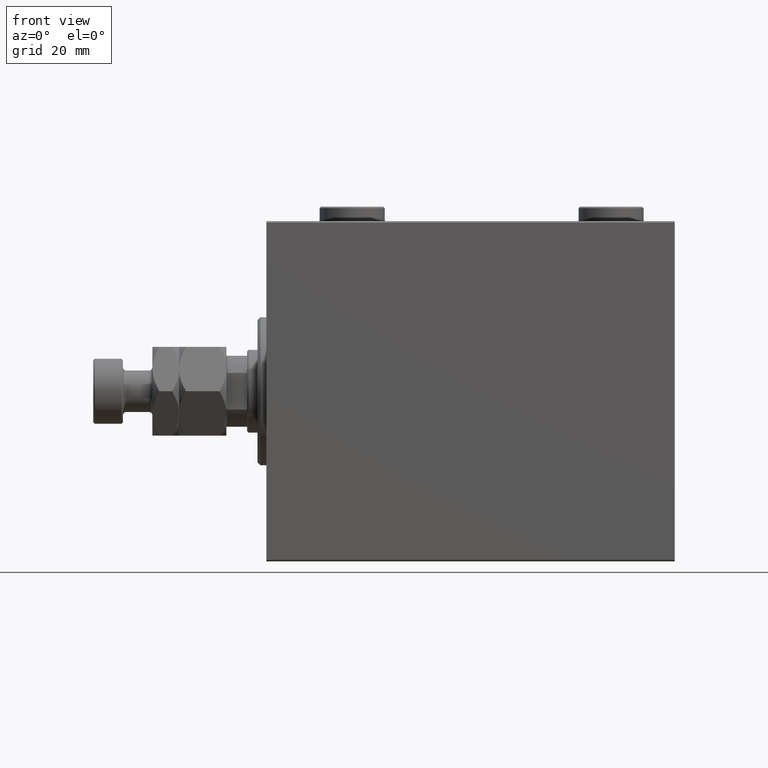
[diagram: clean part render]
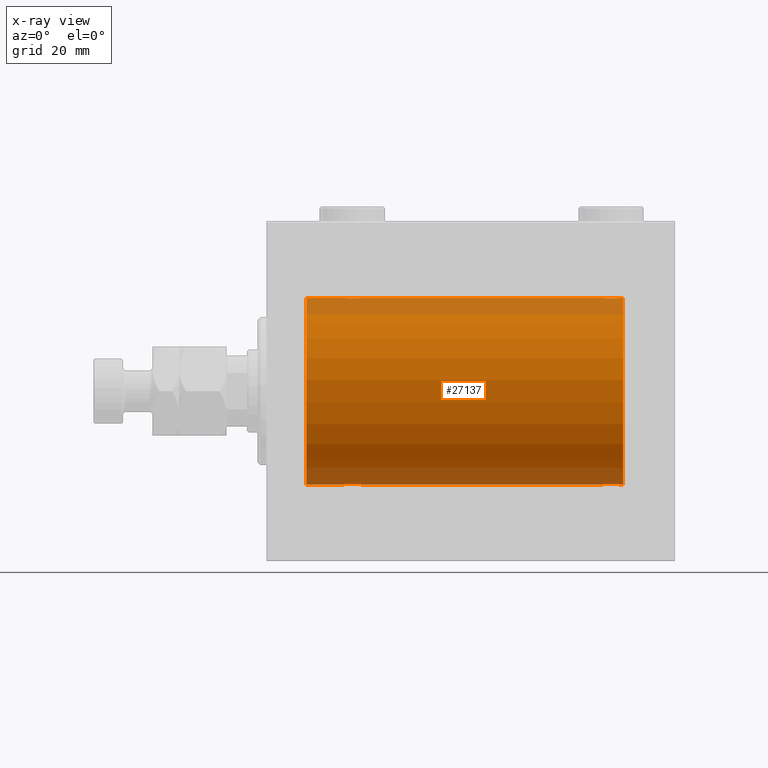
[diagram: x-ray — body ghosted, one internal face saturated and labeled with its STEP entity id]
A machine part, front view, then the same camera in x-ray: the body is ghosted and one INTERNAL B-rep face — a face not visible from any outside direction — is saturated and labeled: STEP entity #27137.
In plain terms, the highlighted cylindrical surface (partial cylindrical patch) has radius 31.5 mm, axis along (-1, -0, -0).
Its self-contained STEP definition (entity closure, byte-faithful):
#1577 = CARTESIAN_POINT ( 'NONE',  ( 118.0009815629615133, -2.604888532024798309, 31.39229907792057972 ) ) ;
#1813 = CARTESIAN_POINT ( 'NONE',  ( 117.2746909443437460, -2.904836261170115730, 31.36579955910872997 ) ) ;
#2293 = CARTESIAN_POINT ( 'NONE',  ( 118.8850144227693306, -1.830470878313876781, -31.44719957596828763 ) ) ;
#2340 = CARTESIAN_POINT ( 'NONE',  ( 26.00000000000000355, -2.117263226567934635E-23, 31.50000000000000000 ) ) ;
#2760 = CARTESIAN_POINT ( 'NONE',  ( 115.1713458531249330, -2.696917666262924840, -31.38442820068731365 ) ) ;
#2805 = DIRECTION ( 'NONE',  ( -1.000000000000000000, -0.000000000000000000, -0.000000000000000000 ) ) ;
#2938 = CARTESIAN_POINT ( 'NONE',  ( 26.39807859560848158, -1.506272792558332130, -31.46439306106697131 ) ) ;
#2983 = LINE ( 'NONE', #31972, #38475 ) ;
#2990 = CARTESIAN_POINT ( 'NONE',  ( 117.8323995809916767, -2.695056442718546830, -31.38458855656186230 ) ) ;
#3174 = CARTESIAN_POINT ( 'NONE',  ( 29.77881912642320827, -2.903733559410679455, -31.36590199989303684 ) ) ;
#3406 = CARTESIAN_POINT ( 'NONE',  ( 27.01856537126958813, -2.261012035264781783, -31.41905495618428645 ) ) ;
#3506 = CARTESIAN_POINT ( 'NONE',  ( 120.5000000000000000, 3.857637417314162689E-15, -31.50000000000000000 ) ) ;
#3878 = CARTESIAN_POINT ( 'NONE',  ( 27.49901843703856130, -2.604888532024793424, -31.39229907792058683 ) ) ;
#4253 = CARTESIAN_POINT ( 'NONE',  ( 13.49999999999999822, 0.000000000000000000, 31.50000000000000000 ) ) ;
#4921 = CARTESIAN_POINT ( 'NONE',  ( 119.1952964235901504, -1.331741824817663122, 31.47235367475394341 ) ) ;
#5039 = LINE ( 'NONE', #19553, #12395 ) ;
#5079 = VERTEX_POINT ( 'NONE', #7379 ) ;
#5145 = CARTESIAN_POINT ( 'NONE',  ( 113.5000000000000142, -2.116947682205846230E-23, 31.50000000000000000 ) ) ;
#5202 = ORIENTED_EDGE ( 'NONE', *, *, #22225, .T. ) ;
#5610 = CARTESIAN_POINT ( 'NONE',  ( 118.8824687226663315, -1.833765390051044442, 31.44700610425689291 ) ) ;
#5855 = CARTESIAN_POINT ( 'NONE',  ( 119.1041778127473094, -1.502389880412997147, -31.46458023642405877 ) ) ;
#5902 = CARTESIAN_POINT ( 'NONE',  ( 29.39114547339941552, -2.980809450819701834, 31.35867074198615967 ) ) ;
#5916 = CARTESIAN_POINT ( 'NONE',  ( 119.5000000000000284, 3.857637396143758955E-15, -31.50000000000000000 ) ) ;
#5991 = VERTEX_POINT ( 'NONE', #18391 ) ;
#6132 = CARTESIAN_POINT ( 'NONE',  ( 27.66760041900836953, -2.695056442718533507, 31.38458855656185875 ) ) ;
#6321 = CARTESIAN_POINT ( 'NONE',  ( 113.5797933704995586, -0.7905881588836273233, -31.49214662150069088 ) ) ;
#6603 = CARTESIAN_POINT ( 'NONE',  ( 27.49543714993000876, -2.602826974226395862, 31.39247100434485560 ) ) ;
#6658 = DIRECTION ( 'NONE',  ( -1.000000000000000000, -0.000000000000000000, -0.000000000000000000 ) ) ;
#6972 = CARTESIAN_POINT ( 'NONE',  ( 26.00000000000000355, -6.595038141055444136E-15, -31.50000000000000000 ) ) ;
#7028 = CARTESIAN_POINT ( 'NONE',  ( 115.7253090556563109, -2.904836261170121947, -31.36579955910872286 ) ) ;
#7379 = CARTESIAN_POINT ( 'NONE',  ( 120.5000000000000000, 0.000000000000000000, 31.50000000000000000 ) ) ;
#7679 = CARTESIAN_POINT ( 'NONE',  ( 31.38501442276926667, -1.830470878313872563, -31.44719957596828763 ) ) ;
#8302 = CIRCLE ( 'NONE', #31034, 31.50000000000000000 ) ;
#8334 = VECTOR ( 'NONE', #6658, 1000.000000000000000 ) ;
#8339 = CARTESIAN_POINT ( 'NONE',  ( 13.49999999999999822, 3.857637417314162689E-15, -31.50000000000000000 ) ) ;
#8723 = CARTESIAN_POINT ( 'NONE',  ( 114.2390453754387067, -1.981494824113344322, 31.43792153503156683 ) ) ;
#9110 = EDGE_LOOP ( 'NONE', ( #44609, #33830, #20163, #28461, #23670, #5202, #10312, #19689, #28111, #31496, #39798, #11813 ) ) ;
#9244 = CARTESIAN_POINT ( 'NONE',  ( 30.82704225370267892, -2.387531469909770276, 31.40957782495776129 ) ) ;
#9412 = CARTESIAN_POINT ( 'NONE',  ( 113.5189849060848672, -0.3904857149112073711, 31.49817436802766935 ) ) ;
#9428 = CARTESIAN_POINT ( 'NONE',  ( 119.5000000000000284, 3.857637396143758955E-15, -31.50000000000000000 ) ) ;
#9475 = CARTESIAN_POINT ( 'NONE',  ( 26.39582218725271900, -1.502389880413001144, 31.46458023642405166 ) ) ;
#9636 = VERTEX_POINT ( 'NONE', #39281 ) ;
#9707 = CARTESIAN_POINT ( 'NONE',  ( 31.60192140439154684, -1.506272792558323470, 31.46439306106697131 ) ) ;
#9773 = CARTESIAN_POINT ( 'NONE',  ( 113.5000000000000142, -2.116947682205846230E-23, 31.50000000000000000 ) ) ;
#9975 = CYLINDRICAL_SURFACE ( 'NONE', #16501, 31.50000000000000000 ) ;
#10128 = CARTESIAN_POINT ( 'NONE',  ( 114.9990184370385720, -2.604888532024810299, -31.39229907792057972 ) ) ;
#10312 = ORIENTED_EDGE ( 'NONE', *, *, #31487, .T. ) ;
#10539 = CARTESIAN_POINT ( 'NONE',  ( 31.60417781274729165, -1.502389880412996259, -31.46458023642406587 ) ) ;
#10776 = CARTESIAN_POINT ( 'NONE',  ( 28.22530905565627179, -2.904836261170103739, -31.36579955910872286 ) ) ;
#11813 = ORIENTED_EDGE ( 'NONE', *, *, #33103, .F. ) ;
#12217 = CARTESIAN_POINT ( 'NONE',  ( 26.00000000000000355, -6.595038141055444136E-15, -31.50000000000000000 ) ) ;
#12280 = CARTESIAN_POINT ( 'NONE',  ( 119.1019214043915468, -1.506272792558327245, 31.46439306106695710 ) ) ;
#12395 = VECTOR ( 'NONE', #26666, 1000.000000000000000 ) ;
#12517 = CARTESIAN_POINT ( 'NONE',  ( 114.9954371499299839, -2.602826974226406076, 31.39247100434484850 ) ) ;
#12622 = DIRECTION ( 'NONE',  ( -1.000000000000000000, -0.000000000000000000, -0.000000000000000000 ) ) ;
#12632 = EDGE_CURVE ( 'NONE', #15732, #19997, #45599, .T. ) ;
#12747 = CARTESIAN_POINT ( 'NONE',  ( 116.8911454733994617, -2.980809450819711159, 31.35867074198615967 ) ) ;
#13043 = CARTESIAN_POINT ( 'NONE',  ( 30.50098156296146712, -2.604888532024788983, 31.39229907792058683 ) ) ;
#13212 = CARTESIAN_POINT ( 'NONE',  ( 114.1149855772307404, -1.830470878313887884, 31.44719957596828053 ) ) ;
#13274 = CARTESIAN_POINT ( 'NONE',  ( 26.61498557723073333, -1.830470878313877892, 31.44719957596828053 ) ) ;
#13453 = DIRECTION ( 'NONE',  ( -1.000000000000000000, -0.000000000000000000, -0.000000000000000000 ) ) ;
#13688 = CARTESIAN_POINT ( 'NONE',  ( 113.5000000000000142, -1.354660151018645615E-14, -31.50000000000000000 ) ) ;
#13876 = CARTESIAN_POINT ( 'NONE',  ( 28.60885452660059869, -2.980809450819698725, -31.35867074198615256 ) ) ;
#14108 = CARTESIAN_POINT ( 'NONE',  ( 32.00000000000000000, 3.857637396137448068E-15, -31.50000000000000000 ) ) ;
#14353 = CARTESIAN_POINT ( 'NONE',  ( 120.5000000000000000, 0.000000000000000000, 0.000000000000000000 ) ) ;
#14365 = VERTEX_POINT ( 'NONE', #31555 ) ;
#14820 = CARTESIAN_POINT ( 'NONE',  ( 29.96944455658523054, -2.845838211243329585, -31.37127560316186603 ) ) ;
#15732 = VERTEX_POINT ( 'NONE', #36186 ) ;
#16323 = CARTESIAN_POINT ( 'NONE',  ( 117.8286541468751238, -2.696917666262913738, 31.38442820068732075 ) ) ;
#16501 = AXIS2_PLACEMENT_3D ( 'NONE', #28258, #35627, #46328 ) ;
#16611 = CARTESIAN_POINT ( 'NONE',  ( 30.32865414687508832, -2.696917666262907520, 31.38442820068731365 ) ) ;
#16790 = CARTESIAN_POINT ( 'NONE',  ( 118.4846035992466966, -2.258226318633792751, -31.41925597582826413 ) ) ;
#17030 = CARTESIAN_POINT ( 'NONE',  ( 116.7004645897410029, -2.999845816735310589, -31.35683219171744796 ) ) ;
#17078 = CARTESIAN_POINT ( 'NONE',  ( 26.73904537543869608, -1.981494824113328779, 31.43792153503155973 ) ) ;
#17218 = VERTEX_POINT ( 'NONE', #9773 ) ;
#17264 = CARTESIAN_POINT ( 'NONE',  ( 114.5185653712695597, -2.261012035264799103, -31.41905495618427224 ) ) ;
#17312 = CARTESIAN_POINT ( 'NONE',  ( 30.98143462873041898, -2.261012035264782227, 31.41905495618429356 ) ) ;
#17678 = CARTESIAN_POINT ( 'NONE',  ( 26.74175498096735026, -1.984587626072075617, -31.43772577203673180 ) ) ;
#17968 = CARTESIAN_POINT ( 'NONE',  ( 118.0045628500700161, -2.602826974226410961, -31.39247100434486271 ) ) ;
#18146 = CARTESIAN_POINT ( 'NONE',  ( 31.98101509391517538, -0.3904857149111993775, -31.49817436802766224 ) ) ;
#18385 = CARTESIAN_POINT ( 'NONE',  ( 30.83043691487002746, -2.384935707362433988, -31.40977595730572958 ) ) ;
#18391 = CARTESIAN_POINT ( 'NONE',  ( 32.00000000000000000, -3.906065418435112189E-16, 31.50000000000000000 ) ) ;
#19430 = CARTESIAN_POINT ( 'NONE',  ( 118.3270422537027144, -2.387531469909779158, 31.40957782495775419 ) ) ;
#19539 = B_SPLINE_CURVE_WITH_KNOTS ( 'NONE', 3,
 ( #2340, #42730, #45360, #31087, #45829, #21115, #9475, #13274, #17078, #27754, #45589, #6603, #6132, #31560, #27985, #28223, #27296, #42021, #5902, #30856, #42488, #16611, #13043, #9244, #17312, #34658, #42256, #9707, #24202, #27531, #46289, #38681 ),
 .UNSPECIFIED., .F., .F.,
 ( 4, 2, 2, 2, 2, 2, 2, 2, 2, 2, 2, 2, 2, 2, 2, 4 ),
 ( 0.009384682587134639611, 0.009971088165454038837, 0.01055749374377343980, 0.01114389932209284076, 0.01173030490041223999, 0.01231671047873163921, 0.01290311605705104017, 0.01348952163537044113, 0.01407592721368984036, 0.01466233279200923958, 0.01524873837032864055, 0.01583514394864804151, 0.01642154952696744247, 0.01700795510528683996, 0.01759436068360624092, 0.01876717184024503243 ),
 .UNSPECIFIED. ) ;
#19553 = CARTESIAN_POINT ( 'NONE',  ( 120.5000000000000000, 0.000000000000000000, 31.50000000000000000 ) ) ;
#19689 = ORIENTED_EDGE ( 'NONE', *, *, #37342, .F. ) ;
#19760 = CARTESIAN_POINT ( 'NONE',  ( 120.5000000000000000, 3.857637417314162689E-15, -31.50000000000000000 ) ) ;
#19997 = VERTEX_POINT ( 'NONE', #12217 ) ;
#20163 = ORIENTED_EDGE ( 'NONE', *, *, #35830, .T. ) ;
#20242 = VECTOR ( 'NONE', #12622, 1000.000000000000000 ) ;
#20367 = CARTESIAN_POINT ( 'NONE',  ( 118.7609546245613643, -1.981494824113334774, -31.43792153503157394 ) ) ;
#21071 = CARTESIAN_POINT ( 'NONE',  ( 117.4694445565852448, -2.845838211243347793, -31.37127560316186603 ) ) ;
#21092 = VECTOR ( 'NONE', #2805, 1000.000000000000000 ) ;
#21115 = CARTESIAN_POINT ( 'NONE',  ( 26.30285761163300151, -1.328004386210305698, 31.47251238182140298 ) ) ;
#21322 = CIRCLE ( 'NONE', #24365, 31.50000000000000000 ) ;
#21480 = CARTESIAN_POINT ( 'NONE',  ( 26.30470357640989576, -1.331741824817665343, -31.47235367475392920 ) ) ;
#21713 = CARTESIAN_POINT ( 'NONE',  ( 29.39534111000094541, -2.980257240990050960, -31.35872356503797320 ) ) ;
#22185 = CARTESIAN_POINT ( 'NONE',  ( 31.26095462456130747, -1.981494824113326114, -31.43792153503156683 ) ) ;
#22225 = EDGE_CURVE ( 'NONE', #19997, #41084, #2983, .T. ) ;
#22990 = CARTESIAN_POINT ( 'NONE',  ( 116.6958229443944361, -3.000152387858496805, 31.35680286115500337 ) ) ;
#23010 = CARTESIAN_POINT ( 'NONE',  ( 118.3304369148700346, -2.384935707362452195, -31.40977595730572247 ) ) ;
#23275 = VERTEX_POINT ( 'NONE', #37153 ) ;
#23670 = ORIENTED_EDGE ( 'NONE', *, *, #12632, .T. ) ;
#23921 = CARTESIAN_POINT ( 'NONE',  ( 119.3466046374250453, -0.9669616078781998469, -31.48567319468627446 ) ) ;
#24202 = CARTESIAN_POINT ( 'NONE',  ( 31.69529642359010424, -1.331741824817659348, 31.47235367475393630 ) ) ;
#24349 = EDGE_CURVE ( 'NONE', #14365, #38319, #26879, .T. ) ;
#24365 = AXIS2_PLACEMENT_3D ( 'NONE', #14353, #39061, #24806 ) ;
#24388 = CARTESIAN_POINT ( 'NONE',  ( 113.8047035764099064, -1.331741824817675113, -31.47235367475394341 ) ) ;
#24796 = CARTESIAN_POINT ( 'NONE',  ( 29.20046458974095671, -2.999845816735294157, -31.35683219171744085 ) ) ;
#24806 = DIRECTION ( 'NONE',  ( 0.000000000000000000, 0.000000000000000000, 1.000000000000000000 ) ) ;
#25024 = CARTESIAN_POINT ( 'NONE',  ( 30.50456285006998769, -2.602826974226392309, -31.39247100434485560 ) ) ;
#25125 = LINE ( 'NONE', #3506, #21092 ) ;
#25218 = LINE ( 'NONE', #33067, #39554 ) ;
#25740 = CARTESIAN_POINT ( 'NONE',  ( 31.69714238836700915, -1.328004386210301480, -31.47251238182141009 ) ) ;
#26666 = DIRECTION ( 'NONE',  ( -1.000000000000000000, -0.000000000000000000, -0.000000000000000000 ) ) ;
#26879 = LINE ( 'NONE', #19760, #20242 ) ;
#27003 = CARTESIAN_POINT ( 'NONE',  ( 114.6695630851300081, -2.384935707362449087, 31.40977595730572958 ) ) ;
#27137 = ADVANCED_FACE ( 'NONE', ( #39425 ), #9975, .F. ) ;
#27248 = CARTESIAN_POINT ( 'NONE',  ( 119.5000000000000568, -0.1958045626907434222, -31.50000000000000711 ) ) ;
#27296 = CARTESIAN_POINT ( 'NONE',  ( 28.79953541025904684, -2.999845816735297266, 31.35683219171744796 ) ) ;
#27437 = CARTESIAN_POINT ( 'NONE',  ( 13.49999999999999822, 0.000000000000000000, 0.000000000000000000 ) ) ;
#27463 = CARTESIAN_POINT ( 'NONE',  ( 119.5000000000000426, -0.3965830985361750161, 31.50000000000000000 ) ) ;
#27531 = CARTESIAN_POINT ( 'NONE',  ( 31.92020662950040943, -0.7905881588836116691, 31.49214662150068378 ) ) ;
#27693 = CARTESIAN_POINT ( 'NONE',  ( 116.1046588899990724, -2.980257240990066947, 31.35872356503798031 ) ) ;
#27754 = CARTESIAN_POINT ( 'NONE',  ( 27.01539640075335669, -2.258226318633785201, 31.41925597582825702 ) ) ;
#27789 = CARTESIAN_POINT ( 'NONE',  ( 113.5000000000000142, -1.354660151018645615E-14, -31.50000000000000000 ) ) ;
#27875 = EDGE_CURVE ( 'NONE', #31694, #15732, #25125, .T. ) ;
#27985 = CARTESIAN_POINT ( 'NONE',  ( 28.22118087357680238, -2.903733559410683895, 31.36590199989303684 ) ) ;
#28111 = ORIENTED_EDGE ( 'NONE', *, *, #45722, .T. ) ;
#28223 = CARTESIAN_POINT ( 'NONE',  ( 28.60465888999904749, -2.980257240990054513, 31.35872356503797320 ) ) ;
#28258 = CARTESIAN_POINT ( 'NONE',  ( 120.5000000000000000, 0.000000000000000000, 0.000000000000000000 ) ) ;
#28407 = CARTESIAN_POINT ( 'NONE',  ( 113.5000000000000284, -0.3965830985361872840, -31.50000000000000711 ) ) ;
#28461 = ORIENTED_EDGE ( 'NONE', *, *, #27875, .T. ) ;
#28511 = CARTESIAN_POINT ( 'NONE',  ( 120.5000000000000000, 0.000000000000000000, 31.50000000000000000 ) ) ;
#28585 = CARTESIAN_POINT ( 'NONE',  ( 32.00000000000001421, -0.1958045626907418957, -31.50000000000000711 ) ) ;
#28639 = CARTESIAN_POINT ( 'NONE',  ( 113.8980785956084532, -1.506272792558335683, -31.46439306106695710 ) ) ;
#28775 = DIRECTION ( 'NONE',  ( -1.000000000000000000, -0.000000000000000000, -0.000000000000000000 ) ) ;
#29059 = CARTESIAN_POINT ( 'NONE',  ( 28.03484270189360217, -2.847307171789034808, -31.37114183851420179 ) ) ;
#30555 = CARTESIAN_POINT ( 'NONE',  ( 115.7211808735768699, -2.903733559410697662, 31.36590199989305106 ) ) ;
#30767 = DIRECTION ( 'NONE',  ( -1.000000000000000000, 0.000000000000000000, 0.000000000000000000 ) ) ;
#30791 = CARTESIAN_POINT ( 'NONE',  ( 113.5958054926194620, -0.7775502215293907948, 31.49099686045558855 ) ) ;
#30856 = CARTESIAN_POINT ( 'NONE',  ( 29.77469094434372821, -2.904836261170106404, 31.36579955910873707 ) ) ;
#30992 = VERTEX_POINT ( 'NONE', #4253 ) ;
#31021 = CARTESIAN_POINT ( 'NONE',  ( 119.4202066295004840, -0.7905881588836165541, 31.49214662150069088 ) ) ;
#31034 = AXIS2_PLACEMENT_3D ( 'NONE', #27437, #30767, #45275 ) ;
#31087 = CARTESIAN_POINT ( 'NONE',  ( 26.09580549261944427, -0.7775502215293862429, 31.49099686045558144 ) ) ;
#31487 = EDGE_CURVE ( 'NONE', #41084, #30992, #8302, .T. ) ;
#31496 = ORIENTED_EDGE ( 'NONE', *, *, #46320, .F. ) ;
#31555 = CARTESIAN_POINT ( 'NONE',  ( 120.5000000000000000, 3.857637417314162689E-15, -31.50000000000000000 ) ) ;
#31560 = CARTESIAN_POINT ( 'NONE',  ( 28.03055544341478722, -2.845838211243333138, 31.37127560316186603 ) ) ;
#31694 = VERTEX_POINT ( 'NONE', #27789 ) ;
#31743 = CARTESIAN_POINT ( 'NONE',  ( 116.8953411100009987, -2.980257240990069167, -31.35872356503797320 ) ) ;
#31924 = CARTESIAN_POINT ( 'NONE',  ( 27.17295774629732819, -2.387531469909775605, -31.40957782495775419 ) ) ;
#31972 = CARTESIAN_POINT ( 'NONE',  ( 120.5000000000000000, 3.857637417314162689E-15, -31.50000000000000000 ) ) ;
#32163 = CARTESIAN_POINT ( 'NONE',  ( 26.07979337049960478, -0.7905881588836203289, -31.49214662150069088 ) ) ;
#32393 = CARTESIAN_POINT ( 'NONE',  ( 31.84660463742499559, -0.9669616078781945179, -31.48567319468626735 ) ) ;
#32450 = CARTESIAN_POINT ( 'NONE',  ( 116.1088545266006378, -2.980809450819716933, -31.35867074198615967 ) ) ;
#33067 = CARTESIAN_POINT ( 'NONE',  ( 120.5000000000000000, 0.000000000000000000, 31.50000000000000000 ) ) ;
#33103 = EDGE_CURVE ( 'NONE', #5079, #9636, #44946, .T. ) ;
#33830 = ORIENTED_EDGE ( 'NONE', *, *, #24349, .T. ) ;
#33905 = CARTESIAN_POINT ( 'NONE',  ( 119.5000000000000284, -2.415502498297804861E-16, 31.50000000000000000 ) ) ;
#34128 = CARTESIAN_POINT ( 'NONE',  ( 116.2995354102590397, -2.999845816735307036, 31.35683219171744796 ) ) ;
#34366 = CARTESIAN_POINT ( 'NONE',  ( 113.5000000000000284, -0.1958045626907495562, 31.50000000000000000 ) ) ;
#34658 = CARTESIAN_POINT ( 'NONE',  ( 31.25824501903266039, -1.984587626072074285, 31.43772577203672469 ) ) ;
#34827 = CARTESIAN_POINT ( 'NONE',  ( 114.5153964007534029, -2.258226318633800300, 31.41925597582826413 ) ) ;
#35627 = DIRECTION ( 'NONE',  ( -1.000000000000000000, -0.000000000000000000, -0.000000000000000000 ) ) ;
#35721 = CARTESIAN_POINT ( 'NONE',  ( 26.61753127733371116, -1.833765390051047106, -31.44700610425690002 ) ) ;
#35830 = EDGE_CURVE ( 'NONE', #38319, #31694, #42573, .T. ) ;
#36186 = CARTESIAN_POINT ( 'NONE',  ( 32.00000000000000000, 3.857637396137448068E-15, -31.50000000000000000 ) ) ;
#36425 = CARTESIAN_POINT ( 'NONE',  ( 30.98460359924664687, -2.258226318633781649, -31.41925597582825702 ) ) ;
#36886 = EDGE_CURVE ( 'NONE', #14365, #5079, #21322, .T. ) ;
#37153 = CARTESIAN_POINT ( 'NONE',  ( 26.00000000000000355, -2.117263226567934635E-23, 31.50000000000000000 ) ) ;
#37342 = EDGE_CURVE ( 'NONE', #23275, #30992, #25218, .T. ) ;
#37466 = CARTESIAN_POINT ( 'NONE',  ( 118.7582450190326995, -1.984587626072075617, 31.43772577203671759 ) ) ;
#37694 = CARTESIAN_POINT ( 'NONE',  ( 117.4651572981064191, -2.847307171789044133, 31.37114183851420890 ) ) ;
#38157 = CARTESIAN_POINT ( 'NONE',  ( 118.4814346287304403, -2.261012035264784892, 31.41905495618427935 ) ) ;
#38282 = B_SPLINE_CURVE_WITH_KNOTS ( 'NONE', 3,
 ( #5145, #34366, #9412, #30791, #41723, #44834, #45763, #13212, #8723, #34827, #27003, #12517, #41498, #41956, #30555, #27693, #34128, #22990, #12747, #1813, #37694, #16323, #1577, #19430, #38157, #37466, #5610, #12280, #4921, #31021, #27463, #33905 ),
 .UNSPECIFIED., .F., .F.,
 ( 4, 2, 2, 2, 2, 2, 2, 2, 2, 2, 2, 2, 2, 2, 2, 4 ),
 ( 0.009384682587134660428, 0.009971088165454063124, 0.01055749374377346582, 0.01114389932209286851, 0.01173030490041227121, 0.01231671047873167217, 0.01290311605705107313, 0.01348952163537047583, 0.01407592721368987679, 0.01466233279200927775, 0.01524873837032867871, 0.01583514394864807967, 0.01642154952696748410, 0.01700795510528688506, 0.01759436068360628602, 0.01876717184024507407 ),
 .UNSPECIFIED. ) ;
#38319 = VERTEX_POINT ( 'NONE', #5916 ) ;
#38404 = CARTESIAN_POINT ( 'NONE',  ( 119.1971423883670411, -1.328004386210309251, -31.47251238182141719 ) ) ;
#38475 = VECTOR ( 'NONE', #13453, 1000.000000000000000 ) ;
#38681 = CARTESIAN_POINT ( 'NONE',  ( 32.00000000000000000, -3.906065418435112189E-16, 31.50000000000000000 ) ) ;
#38873 = CARTESIAN_POINT ( 'NONE',  ( 114.6729577462973424, -2.387531469909792481, -31.40957782495775419 ) ) ;
#39061 = DIRECTION ( 'NONE',  ( -1.000000000000000000, 0.000000000000000000, 0.000000000000000000 ) ) ;
#39106 = CARTESIAN_POINT ( 'NONE',  ( 117.2788191264232438, -2.903733559410696774, -31.36590199989303684 ) ) ;
#39281 = CARTESIAN_POINT ( 'NONE',  ( 119.5000000000000284, -2.415502498297804861E-16, 31.50000000000000000 ) ) ;
#39425 = FACE_OUTER_BOUND ( 'NONE', #9110, .T. ) ;
#39521 = CARTESIAN_POINT ( 'NONE',  ( 26.00000000000000355, -0.3965830985361813443, -31.50000000000000711 ) ) ;
#39554 = VECTOR ( 'NONE', #28775, 1000.000000000000000 ) ;
#39798 = ORIENTED_EDGE ( 'NONE', *, *, #44792, .T. ) ;
#40230 = CARTESIAN_POINT ( 'NONE',  ( 27.67134585312494011, -2.696917666262907520, -31.38442820068732786 ) ) ;
#41084 = VERTEX_POINT ( 'NONE', #8339 ) ;
#41498 = CARTESIAN_POINT ( 'NONE',  ( 115.1676004190083944, -2.695056442718549494, 31.38458855656185875 ) ) ;
#41723 = CARTESIAN_POINT ( 'NONE',  ( 113.6533953625750115, -0.9669616078782070634, 31.48567319468626735 ) ) ;
#41740 = CARTESIAN_POINT ( 'NONE',  ( 119.4041945073805948, -0.7775502215293851327, -31.49099686045559565 ) ) ;
#41956 = CARTESIAN_POINT ( 'NONE',  ( 115.5305554434148263, -2.845838211243349569, 31.37127560316188024 ) ) ;
#42021 = CARTESIAN_POINT ( 'NONE',  ( 29.19582294439440417, -3.000152387858486147, 31.35680286115499626 ) ) ;
#42256 = CARTESIAN_POINT ( 'NONE',  ( 31.38246872266631371, -1.833765390051040223, 31.44700610425690712 ) ) ;
#42488 = CARTESIAN_POINT ( 'NONE',  ( 29.96515729810641204, -2.847307171789037028, 31.37114183851420890 ) ) ;
#42573 = B_SPLINE_CURVE_WITH_KNOTS ( 'NONE', 3,
 ( #9428, #27248, #45316, #41740, #23921, #38404, #5855, #2293, #20367, #16790, #23010, #17968, #2990, #21071, #39106, #31743, #17030, #46011, #32450, #7028, #46243, #2760, #10128, #38873, #17264, #43143, #46947, #28639, #24388, #6321, #28407, #13688 ),
 .UNSPECIFIED., .F., .F.,
 ( 4, 2, 2, 2, 2, 2, 2, 2, 2, 2, 2, 2, 2, 2, 2, 4 ),
 ( 0.009384682587134677775, 0.009971088165454078736, 0.01055749374377348143, 0.01114389932209288239, 0.01173030490041228509, 0.01231671047873168778, 0.01290311605705108874, 0.01348952163537048970, 0.01407592721368989067, 0.01466233279200929336, 0.01524873837032869606, 0.01583514394864809702, 0.01642154952696749798, 0.01700795510528689894, 0.01759436068360629990, 0.01876717184024510529 ),
 .UNSPECIFIED. ) ;
#42730 = CARTESIAN_POINT ( 'NONE',  ( 26.00000000000001066, -0.1958045626907463088, 31.50000000000000711 ) ) ;
#42857 = CARTESIAN_POINT ( 'NONE',  ( 31.90419450738055218, -0.7775502215293819130, -31.49099686045559565 ) ) ;
#43091 = CARTESIAN_POINT ( 'NONE',  ( 28.80417705560560648, -3.000152387858484371, -31.35680286115500337 ) ) ;
#43143 = CARTESIAN_POINT ( 'NONE',  ( 114.2417549809673432, -1.984587626072091160, -31.43772577203671048 ) ) ;
#43801 = CARTESIAN_POINT ( 'NONE',  ( 30.33239958099164824, -2.695056442718529954, -31.38458855656185875 ) ) ;
#44609 = ORIENTED_EDGE ( 'NONE', *, *, #36886, .F. ) ;
#44792 = EDGE_CURVE ( 'NONE', #17218, #9636, #38282, .T. ) ;
#44834 = CARTESIAN_POINT ( 'NONE',  ( 113.8028576116330726, -1.328004386210315024, 31.47251238182141719 ) ) ;
#44946 = LINE ( 'NONE', #28511, #8334 ) ;
#45275 = DIRECTION ( 'NONE',  ( 0.000000000000000000, 0.000000000000000000, 1.000000000000000000 ) ) ;
#45316 = CARTESIAN_POINT ( 'NONE',  ( 119.4810150939152038, -0.3904857149112013204, -31.49817436802766224 ) ) ;
#45360 = CARTESIAN_POINT ( 'NONE',  ( 26.01898490608483527, -0.3904857149112033743, 31.49817436802766935 ) ) ;
#45589 = CARTESIAN_POINT ( 'NONE',  ( 27.16956308512997964, -2.384935707362437096, 31.40977595730572958 ) ) ;
#45599 = B_SPLINE_CURVE_WITH_KNOTS ( 'NONE', 3,
 ( #14108, #28585, #18146, #42857, #32393, #25740, #10539, #7679, #22185, #36425, #18385, #25024, #43801, #14820, #3174, #21713, #24796, #43091, #13876, #10776, #29059, #40230, #3878, #31924, #3406, #17678, #35721, #2938, #21480, #32163, #39521, #6972 ),
 .UNSPECIFIED., .F., .F.,
 ( 4, 2, 2, 2, 2, 2, 2, 2, 2, 2, 2, 2, 2, 2, 2, 4 ),
 ( 0.009384682587134662163, 0.009971088165454068328, 0.01055749374377347449, 0.01114389932209288066, 0.01173030490041228682, 0.01231671047873168605, 0.01290311605705108527, 0.01348952163537048277, 0.01407592721368988199, 0.01466233279200928122, 0.01524873837032868044, 0.01583514394864807967, 0.01642154952696747716, 0.01700795510528687812, 0.01759436068360627908, 0.01876717184024507407 ),
 .UNSPECIFIED. ) ;
#45722 = EDGE_CURVE ( 'NONE', #23275, #5991, #19539, .T. ) ;
#45763 = CARTESIAN_POINT ( 'NONE',  ( 113.8958221872527332, -1.502389880413010026, 31.46458023642405877 ) ) ;
#45829 = CARTESIAN_POINT ( 'NONE',  ( 26.15339536257501507, -0.9669616078781987367, 31.48567319468626735 ) ) ;
#46011 = CARTESIAN_POINT ( 'NONE',  ( 116.3041770556056349, -3.000152387858500802, -31.35680286115499626 ) ) ;
#46243 = CARTESIAN_POINT ( 'NONE',  ( 115.5348427018936377, -2.847307171789053903, -31.37114183851420179 ) ) ;
#46289 = CARTESIAN_POINT ( 'NONE',  ( 32.00000000000001421, -0.3965830985361748495, 31.50000000000001421 ) ) ;
#46320 = EDGE_CURVE ( 'NONE', #17218, #5991, #5039, .T. ) ;
#46328 = DIRECTION ( 'NONE',  ( 0.000000000000000000, 0.000000000000000000, 1.000000000000000000 ) ) ;
#46947 = CARTESIAN_POINT ( 'NONE',  ( 114.1175312773337112, -1.833765390051052657, -31.44700610425689291 ) ) ;